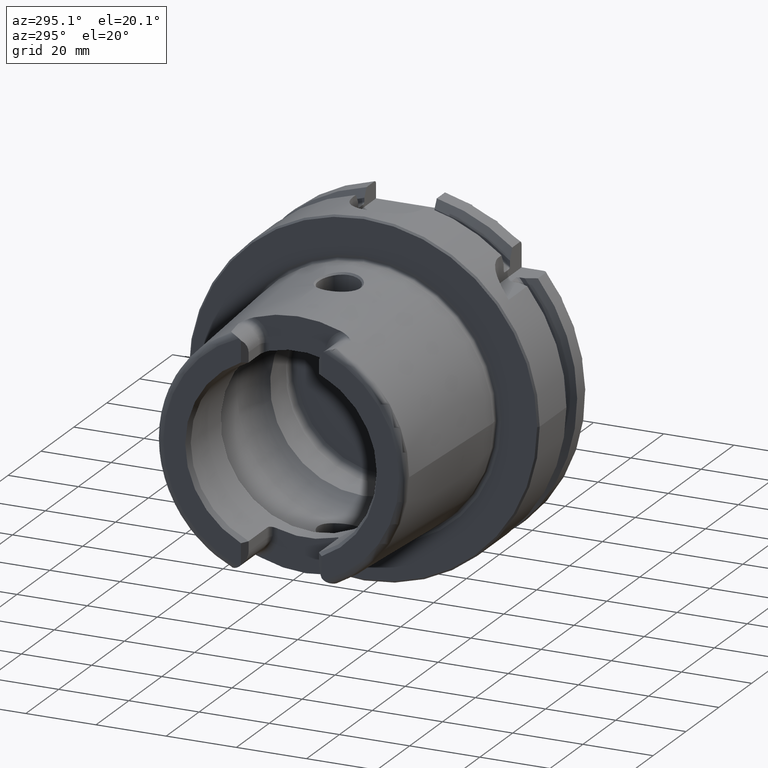
[diagram: clean part render]
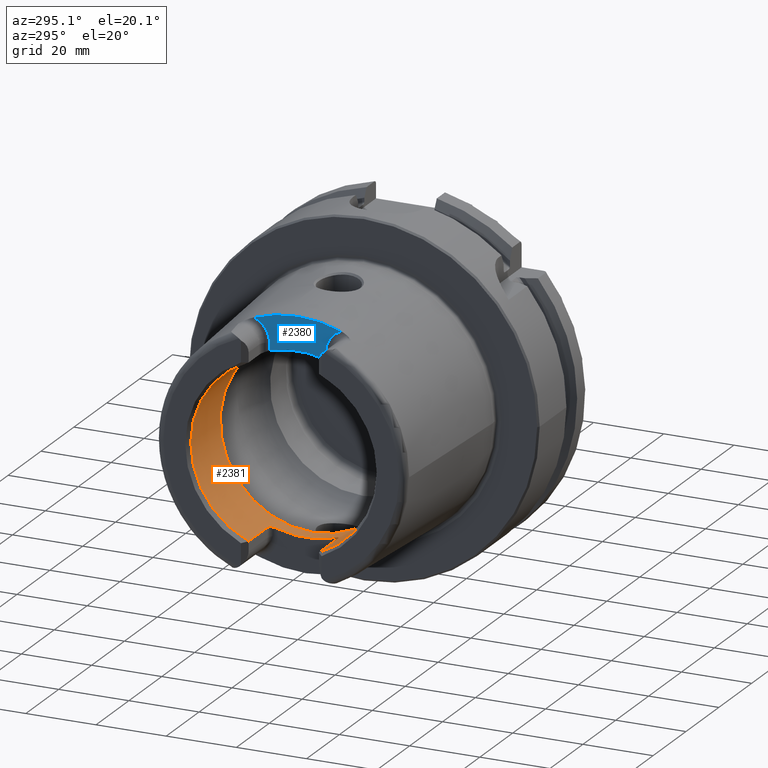
[diagram: same view with the hole feature highlighted: cylindrical wall and planar end face, labeled with their STEP entity ids]
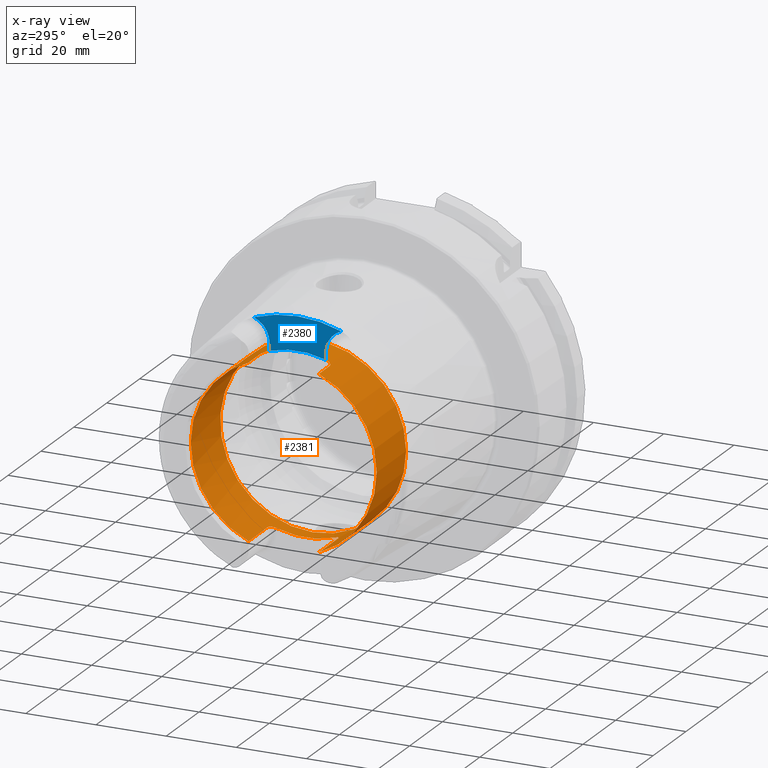
[diagram: x-ray of the same camera — body ghosted, the hole faces saturated]
A machine part, auxiliary view. The highlighted faces form one hole feature of diameter 53 mm: the cylindrical wall (entity #2381, orange) and its adjacent planar end face (entity #2380, blue) — they share a circular edge in the B-rep.
The next image is the same camera in x-ray (body ghosted, the hole faces saturated) — the bore reads through the body.
Wall:
#81=B_SPLINE_CURVE_WITH_KNOTS('',3,(#4967,#4968,#4969,#4970,#4971,#4972,
#4973,#4974,#4975,#4976),.UNSPECIFIED.,.F.,.F.,(4,2,2,2,4),(0.307245873696209,
0.387318131676521,0.467390389656833,0.542677307505841,0.617964225354849),
 .UNSPECIFIED.);
#82=B_SPLINE_CURVE_WITH_KNOTS('',3,(#4985,#4986,#4987,#4988,#4989,#4990,
#4991,#4992,#4993,#4994),.UNSPECIFIED.,.F.,.F.,(4,2,2,2,4),(0.61796422535485,
0.694491364966707,0.771018504578565,0.849854597041439,0.928690689504313),
 .UNSPECIFIED.);
#83=B_SPLINE_CURVE_WITH_KNOTS('',3,(#5003,#5004,#5005,#5006,#5007,#5008,
#5009,#5010,#5011,#5012),.UNSPECIFIED.,.F.,.F.,(4,2,2,2,4),(0.617964225354849,
0.693251143203857,0.768538061052865,0.848610319033177,0.928682577013489),
 .UNSPECIFIED.);
#84=B_SPLINE_CURVE_WITH_KNOTS('',3,(#5026,#5027,#5028,#5029,#5030,#5031,
#5032,#5033,#5034,#5035),.UNSPECIFIED.,.F.,.F.,(4,2,2,2,4),(0.307245873696209,
0.387318131676521,0.467390389656833,0.542677307505841,0.617964225354849),
 .UNSPECIFIED.);
#191=LINE('',#3734,#303);
#197=LINE('',#3828,#309);
#203=LINE('',#3844,#315);
#207=LINE('',#3910,#319);
#266=LINE('',#5050,#378);
#303=VECTOR('',#3012,10.);
#309=VECTOR('',#3042,10.);
#315=VECTOR('',#3056,10.);
#319=VECTOR('',#3080,10.);
#378=VECTOR('',#3377,26.5);
#421=CYLINDRICAL_SURFACE('',#2690,26.5);
#532=FACE_OUTER_BOUND('',#676,.T.);
#676=EDGE_LOOP('',(#2092,#2093,#2094,#2095,#2096,#2097,#2098,#2099,#2100,
#2101,#2102,#2103,#2104,#2105,#2106,#2107,#2108));
#849=CIRCLE('',#2678,26.5);
#854=CIRCLE('',#2689,26.5);
#855=CIRCLE('',#2691,26.5);
#856=CIRCLE('',#2692,26.5);
#857=CIRCLE('',#2693,26.5);
#858=CIRCLE('',#2694,26.5);
#859=CIRCLE('',#2695,26.5);
#963=VERTEX_POINT('',#3724);
#966=VERTEX_POINT('',#3732);
#975=VERTEX_POINT('',#3781);
#982=VERTEX_POINT('',#3827);
#985=VERTEX_POINT('',#3834);
#988=VERTEX_POINT('',#3842);
#995=VERTEX_POINT('',#3877);
#1000=VERTEX_POINT('',#3909);
#1105=VERTEX_POINT('',#4965);
#1107=VERTEX_POINT('',#4984);
#1109=VERTEX_POINT('',#5002);
#1110=VERTEX_POINT('',#5019);
#1112=VERTEX_POINT('',#5046);
#1113=VERTEX_POINT('',#5047);
#1114=VERTEX_POINT('',#5049);
#1237=EDGE_CURVE('',#963,#966,#191,.T.);
#1255=EDGE_CURVE('',#982,#975,#197,.T.);
#1263=EDGE_CURVE('',#985,#988,#203,.T.);
#1277=EDGE_CURVE('',#1000,#995,#207,.T.);
#1434=EDGE_CURVE('',#1105,#988,#81,.T.);
#1438=EDGE_CURVE('',#1000,#1107,#82,.T.);
#1443=EDGE_CURVE('',#982,#1109,#83,.T.);
#1447=EDGE_CURVE('',#1110,#1109,#849,.T.);
#1451=EDGE_CURVE('',#1110,#966,#84,.T.);
#1455=EDGE_CURVE('',#1105,#1107,#854,.T.);
#1456=EDGE_CURVE('',#1112,#1113,#855,.T.);
#1457=EDGE_CURVE('',#1112,#1114,#266,.T.);
#1458=EDGE_CURVE('',#985,#1114,#856,.T.);
#1459=EDGE_CURVE('',#963,#995,#857,.T.);
#1460=EDGE_CURVE('',#1114,#975,#858,.T.);
#1461=EDGE_CURVE('',#1113,#1112,#859,.T.);
#2092=ORIENTED_EDGE('',*,*,#1456,.F.);
#2093=ORIENTED_EDGE('',*,*,#1457,.T.);
#2094=ORIENTED_EDGE('',*,*,#1458,.F.);
#2095=ORIENTED_EDGE('',*,*,#1263,.T.);
#2096=ORIENTED_EDGE('',*,*,#1434,.F.);
#2097=ORIENTED_EDGE('',*,*,#1455,.T.);
#2098=ORIENTED_EDGE('',*,*,#1438,.F.);
#2099=ORIENTED_EDGE('',*,*,#1277,.T.);
#2100=ORIENTED_EDGE('',*,*,#1459,.F.);
#2101=ORIENTED_EDGE('',*,*,#1237,.T.);
#2102=ORIENTED_EDGE('',*,*,#1451,.F.);
#2103=ORIENTED_EDGE('',*,*,#1447,.T.);
#2104=ORIENTED_EDGE('',*,*,#1443,.F.);
#2105=ORIENTED_EDGE('',*,*,#1255,.T.);
#2106=ORIENTED_EDGE('',*,*,#1460,.F.);
#2107=ORIENTED_EDGE('',*,*,#1457,.F.);
#2108=ORIENTED_EDGE('',*,*,#1461,.F.);
#2381=ADVANCED_FACE('',(#532),#421,.F.);
#2678=AXIS2_PLACEMENT_3D('',#5020,#3347,#3348);
#2689=AXIS2_PLACEMENT_3D('',#5044,#3371,#3372);
#2690=AXIS2_PLACEMENT_3D('',#5045,#3373,#3374);
#2691=AXIS2_PLACEMENT_3D('',#5048,#3375,#3376);
#2692=AXIS2_PLACEMENT_3D('',#5051,#3378,#3379);
#2693=AXIS2_PLACEMENT_3D('',#5052,#3380,#3381);
#2694=AXIS2_PLACEMENT_3D('',#5053,#3382,#3383);
#2695=AXIS2_PLACEMENT_3D('',#5054,#3384,#3385);
#3012=DIRECTION('',(1.,0.,0.));
#3042=DIRECTION('',(-1.,0.,0.));
#3056=DIRECTION('',(1.,0.,0.));
#3080=DIRECTION('',(-1.,0.,0.));
#3347=DIRECTION('center_axis',(-1.,0.,0.));
#3348=DIRECTION('ref_axis',(0.,1.,0.));
#3371=DIRECTION('center_axis',(-1.,0.,0.));
#3372=DIRECTION('ref_axis',(0.,1.,0.));
#3373=DIRECTION('center_axis',(-1.,0.,0.));
#3374=DIRECTION('ref_axis',(0.,1.,0.));
#3375=DIRECTION('center_axis',(-1.,0.,0.));
#3376=DIRECTION('ref_axis',(0.,0.,1.));
#3377=DIRECTION('',(-1.,0.,0.));
#3378=DIRECTION('center_axis',(1.,0.,0.));
#3379=DIRECTION('ref_axis',(0.,-1.,0.));
#3380=DIRECTION('center_axis',(1.,0.,0.));
#3381=DIRECTION('ref_axis',(0.,-1.,0.));
#3382=DIRECTION('center_axis',(1.,0.,0.));
#3383=DIRECTION('ref_axis',(0.,-1.,0.));
#3384=DIRECTION('center_axis',(-1.,0.,0.));
#3385=DIRECTION('ref_axis',(0.,0.,1.));
#3724=CARTESIAN_POINT('',(-48.5,10.01,-24.5367051577835));
#3732=CARTESIAN_POINT('',(-37.,10.01,-24.5367051577835));
#3734=CARTESIAN_POINT('',(-40.2903629710818,10.01,-24.5367051577835));
#3781=CARTESIAN_POINT('',(-48.5,-10.01,-24.5367051577835));
#3827=CARTESIAN_POINT('',(-37.,-10.01,-24.5367051577835));
#3828=CARTESIAN_POINT('',(-40.2903629710818,-10.01,-24.5367051577835));
#3834=CARTESIAN_POINT('',(-48.5,-10.01,24.5367051577835));
#3842=CARTESIAN_POINT('',(-42.,-10.01,24.5367051577835));
#3844=CARTESIAN_POINT('',(-40.2903629710818,-10.01,24.5367051577835));
#3877=CARTESIAN_POINT('',(-48.5,10.01,24.5367051577835));
#3909=CARTESIAN_POINT('',(-42.,10.01,24.5367051577835));
#3910=CARTESIAN_POINT('',(-40.2903629710818,10.01,24.5367051577835));
#4965=CARTESIAN_POINT('',(-40.,-8.01,25.2604414054862));
#4967=CARTESIAN_POINT('Ctrl Pts',(-40.,-8.01,25.2604414054862));
#4968=CARTESIAN_POINT('Ctrl Pts',(-40.,-8.26442271458071,25.1797648285777));
#4969=CARTESIAN_POINT('Ctrl Pts',(-40.0513332778729,-8.53503831367686,25.0892968127514));
#4970=CARTESIAN_POINT('Ctrl Pts',(-40.2604388709541,-9.03317850506395,24.9142806373643));
#4971=CARTESIAN_POINT('Ctrl Pts',(-40.4182028025644,-9.2607746884821,24.8299262887475));
#4972=CARTESIAN_POINT('Ctrl Pts',(-40.7762398849713,-9.61038047170956,24.6966285655713));
#4973=CARTESIAN_POINT('Ctrl Pts',(-40.996584045901,-9.75993653512726,24.6374761492843));
#4974=CARTESIAN_POINT('Ctrl Pts',(-41.4829332858843,-9.95981108540838,24.557356442995));
#4975=CARTESIAN_POINT('Ctrl Pts',(-41.74904360717,-10.01,24.5367051577835));
#4976=CARTESIAN_POINT('Ctrl Pts',(-42.,-10.01,24.5367051577835));
#4984=CARTESIAN_POINT('',(-40.,8.01,25.2604414054862));
#4985=CARTESIAN_POINT('Ctrl Pts',(-42.,10.01,24.5367051577835));
#4986=CARTESIAN_POINT('Ctrl Pts',(-41.7449095346271,10.01,24.5367051577835));
#4987=CARTESIAN_POINT('Ctrl Pts',(-41.4747619014646,9.95816285425487,24.5580391842641));
#4988=CARTESIAN_POINT('Ctrl Pts',(-40.9823460284033,9.75229566196282,24.640515927451));
#4989=CARTESIAN_POINT('Ctrl Pts',(-40.7599680829949,9.59839520774108,24.7013267120605));
#4990=CARTESIAN_POINT('Ctrl Pts',(-40.4063494382929,9.24477656303909,24.8358806096526));
#4991=CARTESIAN_POINT('Ctrl Pts',(-40.2529543645221,9.01930384320105,24.9192727261742));
#4992=CARTESIAN_POINT('Ctrl Pts',(-40.049776768453,8.52719637786957,25.0919293188873));
#4993=CARTESIAN_POINT('Ctrl Pts',(-40.,8.26049490494288,25.1810103236462));
#4994=CARTESIAN_POINT('Ctrl Pts',(-40.,8.01,25.2604414054862));
#5002=CARTESIAN_POINT('',(-35.,-8.01,-25.2604414054862));
#5003=CARTESIAN_POINT('Ctrl Pts',(-37.,-10.01,-24.5367051577835));
#5004=CARTESIAN_POINT('Ctrl Pts',(-36.74904360717,-10.01,-24.5367051577835));
#5005=CARTESIAN_POINT('Ctrl Pts',(-36.4829332858843,-9.95981108540838,-24.557356442995));
#5006=CARTESIAN_POINT('Ctrl Pts',(-35.9965840459011,-9.75993653512726,-24.6374761492843));
#5007=CARTESIAN_POINT('Ctrl Pts',(-35.7762398849713,-9.61038047170956,-24.6966285655713));
#5008=CARTESIAN_POINT('Ctrl Pts',(-35.4182028025644,-9.2607746884821,-24.8299262887475));
#5009=CARTESIAN_POINT('Ctrl Pts',(-35.2604388709541,-9.03317850506395,-24.9142806373643));
#5010=CARTESIAN_POINT('Ctrl Pts',(-35.0513332778729,-8.53503831367686,-25.0892968127514));
#5011=CARTESIAN_POINT('Ctrl Pts',(-35.,-8.26442271458071,-25.1797648285777));
#5012=CARTESIAN_POINT('Ctrl Pts',(-35.,-8.01,-25.2604414054862));
#5019=CARTESIAN_POINT('',(-35.,8.01,-25.2604414054862));
#5020=CARTESIAN_POINT('Origin',(-35.,0.,0.));
#5026=CARTESIAN_POINT('Ctrl Pts',(-35.,8.01,-25.2604414054862));
#5027=CARTESIAN_POINT('Ctrl Pts',(-35.,8.26442271458071,-25.1797648285777));
#5028=CARTESIAN_POINT('Ctrl Pts',(-35.0513332778729,8.53503831367686,-25.0892968127514));
#5029=CARTESIAN_POINT('Ctrl Pts',(-35.2604388709541,9.03317850506395,-24.9142806373643));
#5030=CARTESIAN_POINT('Ctrl Pts',(-35.4182028025644,9.2607746884821,-24.8299262887475));
#5031=CARTESIAN_POINT('Ctrl Pts',(-35.7762398849713,9.61038047170956,-24.6966285655713));
#5032=CARTESIAN_POINT('Ctrl Pts',(-35.9965840459011,9.75993653512726,-24.6374761492843));
#5033=CARTESIAN_POINT('Ctrl Pts',(-36.4829332858843,9.95981108540838,-24.557356442995));
#5034=CARTESIAN_POINT('Ctrl Pts',(-36.74904360717,10.01,-24.5367051577835));
#5035=CARTESIAN_POINT('Ctrl Pts',(-37.,10.01,-24.5367051577835));
#5044=CARTESIAN_POINT('Origin',(-40.,0.,0.));
#5045=CARTESIAN_POINT('Origin',(-40.2903629710818,0.,0.));
#5046=CARTESIAN_POINT('',(-30.5807259421637,-26.5,3.24531401774049E-15));
#5047=CARTESIAN_POINT('',(-30.5807259421637,-3.24531401774049E-15,-26.5));
#5048=CARTESIAN_POINT('Origin',(-30.5807259421637,0.,0.));
#5049=CARTESIAN_POINT('',(-48.5,-26.5,3.24531401774049E-15));
#5050=CARTESIAN_POINT('',(-40.2903629710818,-26.5,3.24531401774049E-15));
#5051=CARTESIAN_POINT('Origin',(-48.5,0.,0.));
#5052=CARTESIAN_POINT('Origin',(-48.5,0.,0.));
#5053=CARTESIAN_POINT('Origin',(-48.5,0.,0.));
#5054=CARTESIAN_POINT('Origin',(-30.5807259421637,0.,0.));
End face:
#134=PLANE('',#2688);
#260=LINE('',#4966,#372);
#261=LINE('',#4995,#373);
#372=VECTOR('',#3313,10.);
#373=VECTOR('',#3326,10.);
#531=FACE_OUTER_BOUND('',#675,.T.);
#675=EDGE_LOOP('',(#2086,#2087,#2088,#2089,#2090,#2091));
#799=CIRCLE('',#2578,36.003493987976);
#842=CIRCLE('',#2664,6.88);
#844=CIRCLE('',#2667,6.88);
#854=CIRCLE('',#2689,26.5);
#1012=VERTEX_POINT('',#4144);
#1013=VERTEX_POINT('',#4161);
#1104=VERTEX_POINT('',#4963);
#1105=VERTEX_POINT('',#4965);
#1106=VERTEX_POINT('',#4980);
#1107=VERTEX_POINT('',#4984);
#1295=EDGE_CURVE('',#1012,#1013,#799,.T.);
#1433=EDGE_CURVE('',#1104,#1105,#260,.T.);
#1435=EDGE_CURVE('',#1013,#1104,#842,.T.);
#1437=EDGE_CURVE('',#1106,#1012,#844,.T.);
#1439=EDGE_CURVE('',#1107,#1106,#261,.T.);
#1455=EDGE_CURVE('',#1105,#1107,#854,.T.);
#2086=ORIENTED_EDGE('',*,*,#1435,.F.);
#2087=ORIENTED_EDGE('',*,*,#1295,.F.);
#2088=ORIENTED_EDGE('',*,*,#1437,.F.);
#2089=ORIENTED_EDGE('',*,*,#1439,.F.);
#2090=ORIENTED_EDGE('',*,*,#1455,.F.);
#2091=ORIENTED_EDGE('',*,*,#1433,.F.);
#2380=ADVANCED_FACE('',(#531),#134,.T.);
#2578=AXIS2_PLACEMENT_3D('',#4162,#3094,#3095);
#2664=AXIS2_PLACEMENT_3D('',#4978,#3316,#3317);
#2667=AXIS2_PLACEMENT_3D('',#4982,#3322,#3323);
#2688=AXIS2_PLACEMENT_3D('',#5043,#3369,#3370);
#2689=AXIS2_PLACEMENT_3D('',#5044,#3371,#3372);
#3094=DIRECTION('center_axis',(1.,0.,0.));
#3095=DIRECTION('ref_axis',(0.,1.,0.));
#3313=DIRECTION('',(0.,0.,-1.));
#3316=DIRECTION('center_axis',(-1.,0.,0.));
#3317=DIRECTION('ref_axis',(0.,0.564947834751706,0.82512662301574));
#3322=DIRECTION('center_axis',(-1.,0.,0.));
#3323=DIRECTION('ref_axis',(0.,-0.564947834751705,0.825126623015741));
#3326=DIRECTION('',(0.,0.,1.));
#3369=DIRECTION('center_axis',(-1.,0.,0.));
#3370=DIRECTION('ref_axis',(0.,0.,1.));
#3371=DIRECTION('center_axis',(-1.,0.,0.));
#3372=DIRECTION('ref_axis',(0.,1.,0.));
#4144=CARTESIAN_POINT('',(-40.,12.4227760464511,33.7923987701664));
#4161=CARTESIAN_POINT('',(-40.,-12.4227760464511,33.7923987701664));
#4162=CARTESIAN_POINT('Origin',(-40.,0.,0.));
#4963=CARTESIAN_POINT('',(-40.,-8.01,27.37));
#4965=CARTESIAN_POINT('',(-40.,-8.01,25.2604414054862));
#4966=CARTESIAN_POINT('',(-40.,-8.01,23.5));
#4978=CARTESIAN_POINT('Origin',(-40.,-14.89,27.37));
#4980=CARTESIAN_POINT('',(-40.,8.01,27.37));
#4982=CARTESIAN_POINT('Origin',(-40.,14.89,27.37));
#4984=CARTESIAN_POINT('',(-40.,8.01,25.2604414054862));
#4995=CARTESIAN_POINT('',(-40.,8.01,28.185));
#5043=CARTESIAN_POINT('Origin',(-40.,0.,29.));
#5044=CARTESIAN_POINT('Origin',(-40.,0.,0.));